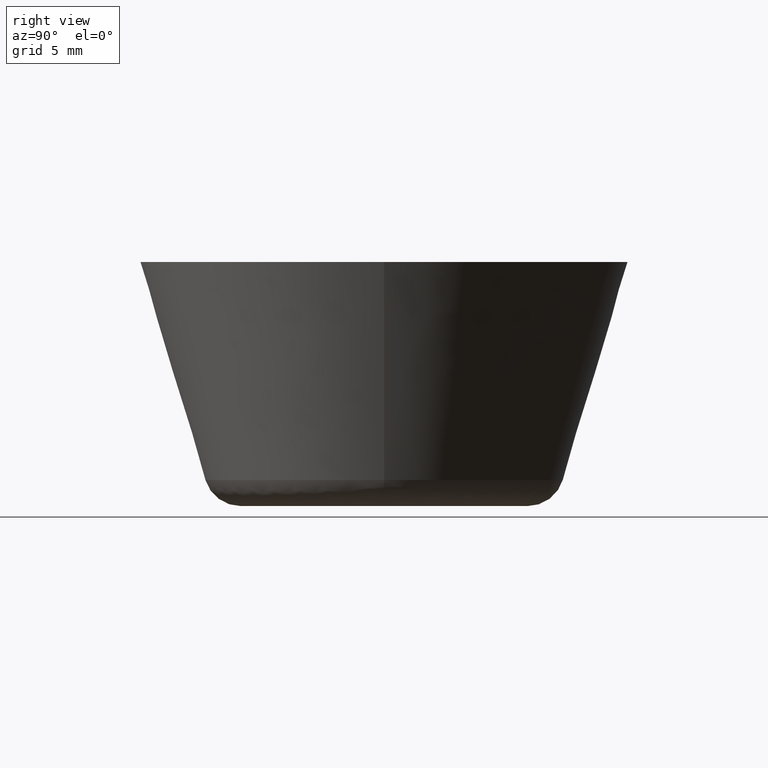
[diagram: clean part render]
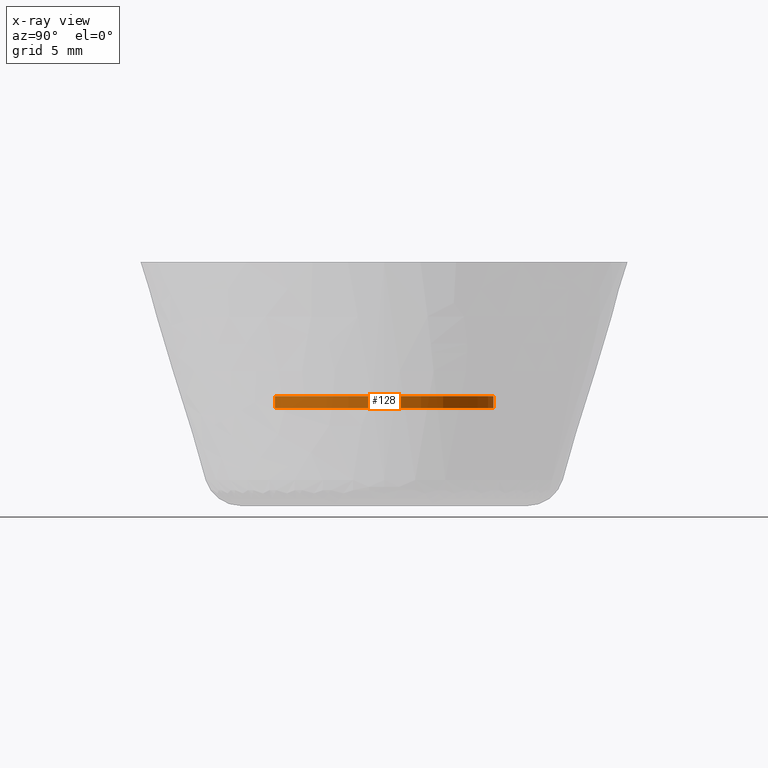
[diagram: x-ray — body ghosted, one internal face saturated and labeled with its STEP entity id]
A machine part, right view, then the same camera in x-ray: the body is ghosted and one INTERNAL B-rep face — a face not visible from any outside direction — is saturated and labeled: STEP entity #128.
In plain terms, the highlighted cylindrical surface (partial cylindrical patch) has radius 4.5 mm, axis along (-0, -0, -1).
Its self-contained STEP definition (entity closure, byte-faithful):
#128=ADVANCED_FACE('',(#299),#298,.F.);
#298=CYLINDRICAL_SURFACE('',#481,4.50000000000E+000);
#299=FACE_OUTER_BOUND('',#482,.T.);
#478=CARTESIAN_POINT('',(-9.74997860226E-013,-5.13849379713E-013,4.25000000000E+000));
#479=DIRECTION('',(-3.61652189055E-015,-4.29876521766E-016,-1.00000000000E+000));
#480=DIRECTION('',(-1.18033713284E-001,9.93009588337E-001,-1.08813501114E-028));
#481=AXIS2_PLACEMENT_3D('',#478,#479,#480);
#482=EDGE_LOOP('',(#566,#567,#568,#569));
#566=ORIENTED_EDGE('',*,*,#609,.F.);
#567=ORIENTED_EDGE('',*,*,#620,.T.);
#568=ORIENTED_EDGE('',*,*,#605,.T.);
#569=ORIENTED_EDGE('',*,*,#621,.F.);
#605=EDGE_CURVE('',#775,#774,#782,.T.);
#609=EDGE_CURVE('',#803,#802,#810,.T.);
#620=EDGE_CURVE('',#803,#775,#880,.T.);
#621=EDGE_CURVE('',#802,#774,#886,.T.);
#774=VERTEX_POINT('',#1002);
#775=VERTEX_POINT('',#1003);
#782=CIRCLE('',#1011,4.49999999999E+000);
#802=VERTEX_POINT('',#1022);
#803=VERTEX_POINT('',#1023);
#810=CIRCLE('',#1031,4.49999999999E+000);
#880=(BOUNDED_CURVE() B_SPLINE_CURVE(1,(#1067,#1068),.UNSPECIFIED.,.F.,.F.) B_SPLINE_CURVE_WITH_KNOTS((2,2),(8.33334128067E-002,9.16666680514E-001),.UNSPECIFIED.) CURVE() GEOMETRIC_REPRESENTATION_ITEM() RATIONAL_B_SPLINE_CURVE((1.00000000000E+000,1.00000000000E+000)) REPRESENTATION_ITEM('') );
#886=(BOUNDED_CURVE() B_SPLINE_CURVE(1,(#1069,#1070),.UNSPECIFIED.,.F.,.F.) B_SPLINE_CURVE_WITH_KNOTS((2,2),(8.33333333495E-002,9.16666666667E-001),.UNSPECIFIED.) CURVE() GEOMETRIC_REPRESENTATION_ITEM() RATIONAL_B_SPLINE_CURVE((7.50000000000E-001,7.50000000000E-001)) REPRESENTATION_ITEM('') );
#1002=CARTESIAN_POINT('',(5.31924022606E-001,-4.46845127914E+000,4.00000000000E+000));
#1003=CARTESIAN_POINT('',(-5.31924022593E-001,4.46845127915E+000,4.00000000000E+000));
#1008=CARTESIAN_POINT('',(6.50568487970E-012,2.95452551313E-012,4.00000000000E+000));
#1009=DIRECTION('',(8.31528995254E-016,9.88393827396E-017,-1.00000000000E+000));
#1010=DIRECTION('',(-1.18205338356E-001,9.92989173146E-001,-1.44729295726E-019));
#1011=AXIS2_PLACEMENT_3D('',#1008,#1009,#1010);
#1022=CARTESIAN_POINT('',(5.31151708463E-001,-4.46854314766E+000,4.50000000000E+000));
#1023=CARTESIAN_POINT('',(-5.31151709778E-001,4.46854314751E+000,4.50000000000E+000));
#1028=CARTESIAN_POINT('',(6.66933175353E-012,3.03046476802E-012,4.50000000000E+000));
#1029=DIRECTION('',(1.08495928291E-012,1.61759868374E-013,-1.00000000000E+000));
#1030=DIRECTION('',(1.18033712991E-001,-9.93009588371E-001,-3.25673277037E-014));
#1031=AXIS2_PLACEMENT_3D('',#1028,#1029,#1030);
#1067=CARTESIAN_POINT('',(-5.31151709779E-001,4.46854314751E+000,4.49999995232E+000));
#1068=CARTESIAN_POINT('',(-5.31151709779E-001,4.46854314751E+000,3.99999999169E+000));
#1069=CARTESIAN_POINT('',(5.31151709777E-001,-4.46854314752E+000,4.50000000000E+000));
#1070=CARTESIAN_POINT('',(5.31151709777E-001,-4.46854314752E+000,4.00000000000E+000));